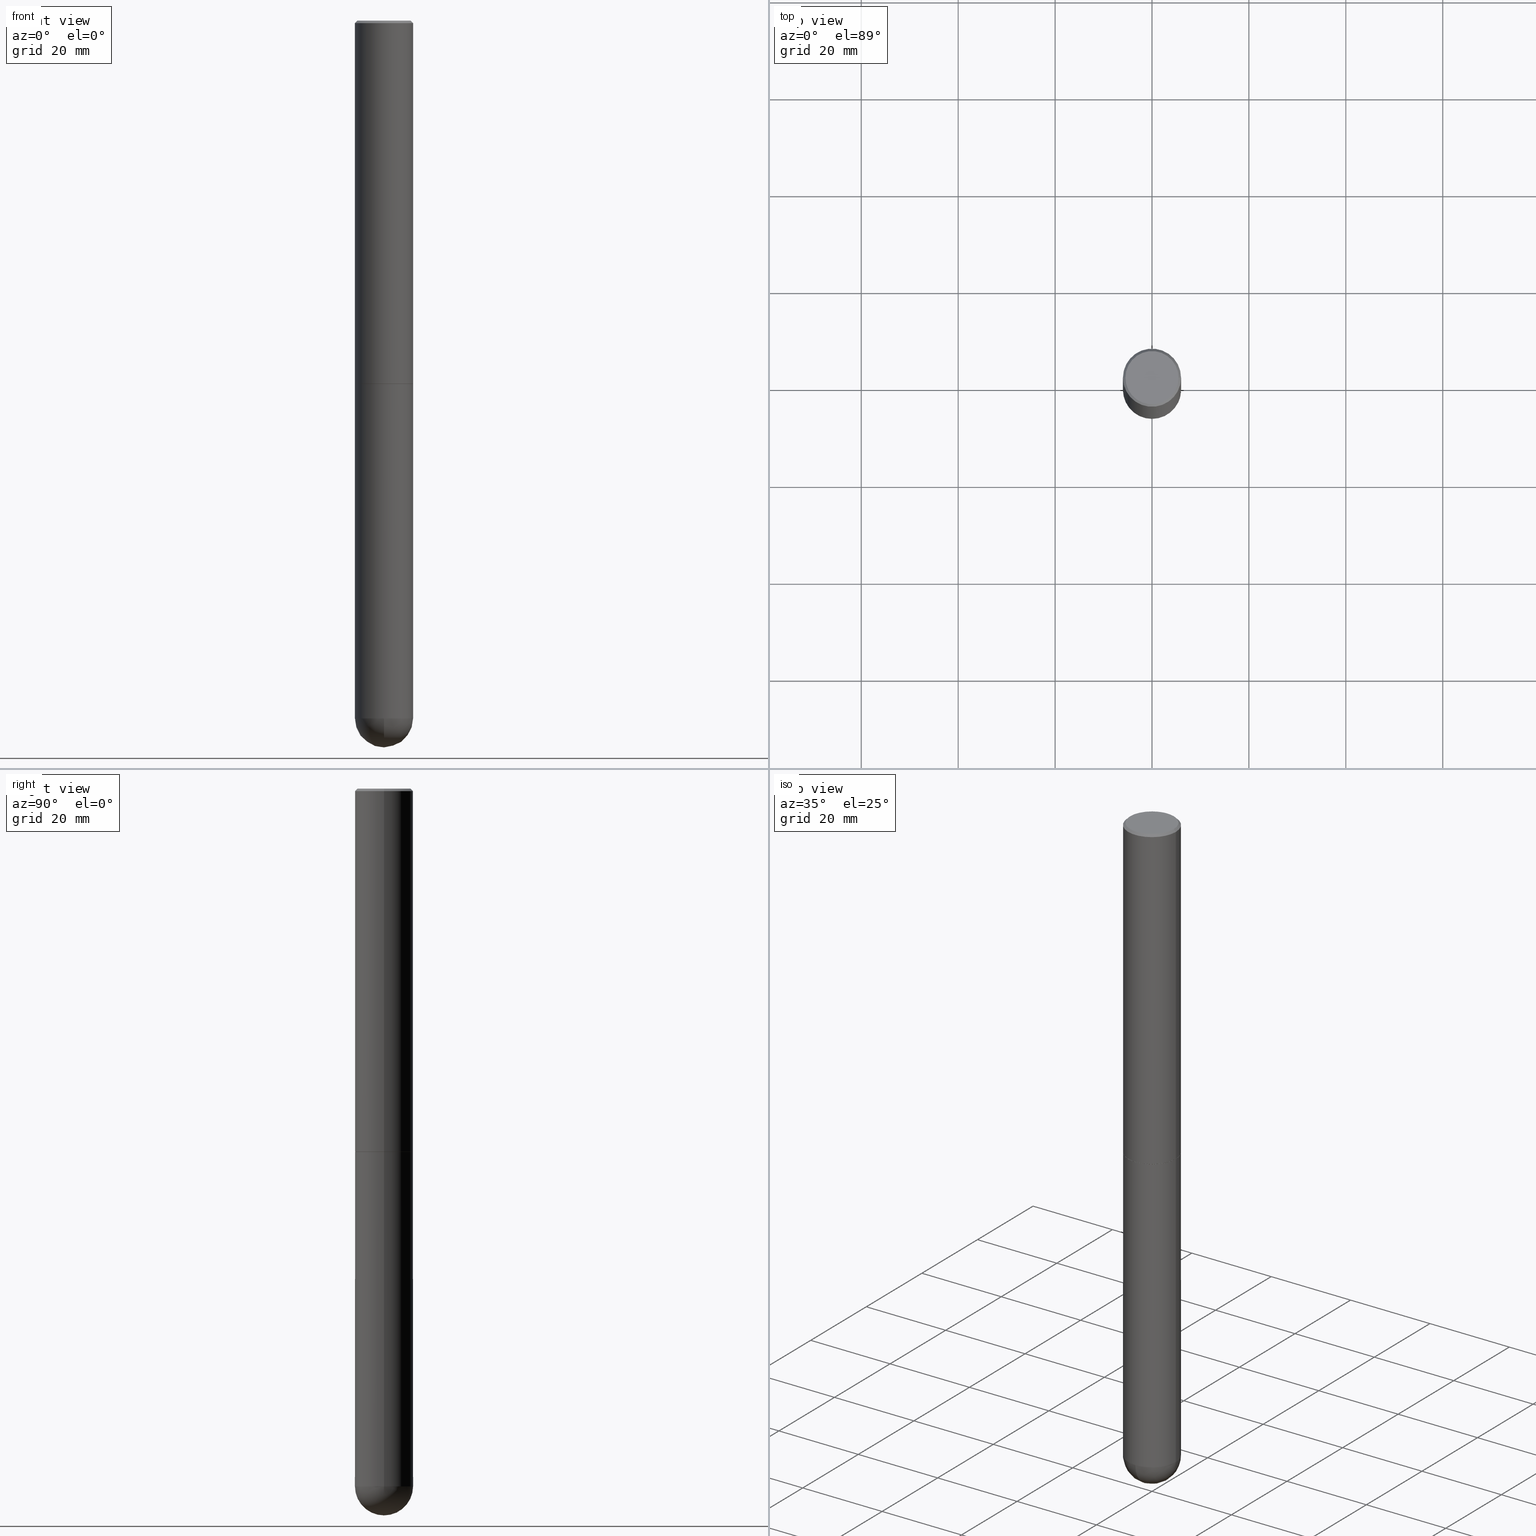
[diagram: canonical four-view strip — front | top / right | iso, engineering-drawing reading convention]
A machine part, canonical four-view strip (front | top / right | iso — engineering-drawing reading convention). The complete STEP part file that produces these views, byte-faithful:
ISO-10303-21;
HEADER;
FILE_DESCRIPTION (( 'STEP AP203' ),
    '1' );
FILE_NAME ('43546.STEP',
    '2024-04-10T11:44:12',
    ( '' ),
    ( '' ),
    'SwSTEP 2.0',
    'SolidWorks 2023',
    '' );
FILE_SCHEMA (( 'CONFIG_CONTROL_DESIGN' ));
ENDSEC;

DATA;
#1 = DIRECTION ( 'NONE',  ( -2.445468806185136597E-29, 3.491481338843145583E-15, 1.000000000000000000 ) ) ;
#2 = CARTESIAN_POINT ( 'NONE',  ( 0.000000000000000000, 0.000000000000000000, 0.000000000000000000 ) ) ;
#3 = CONICAL_SURFACE ( 'NONE', #379, 0.2351999999999999924, 0.7853981633977213939 ) ;
#4 = ADVANCED_FACE ( 'NONE', ( #305 ), #247, .T. ) ;
#5 = VECTOR ( 'NONE', #196, 39.37007874015748143 ) ;
#6 = DIRECTION ( 'NONE',  ( -2.445468806185136597E-29, 3.491481338843145583E-15, 1.000000000000000000 ) ) ;
#7 = EDGE_CURVE ( 'NONE', #111, #225, #255, .T. ) ;
#8 = CARTESIAN_POINT ( 'NONE',  ( 4.890937612370285420E-31, -6.982962677686308865E-17, -0.02000000000000005246 ) ) ;
#9 = DIMENSIONAL_EXPONENTS ( 1.000000000000000000, 0.000000000000000000, 0.000000000000000000, 0.000000000000000000, 0.000000000000000000, 0.000000000000000000, 0.000000000000000000 ) ;
#10 = AXIS2_PLACEMENT_3D ( 'NONE', #240, #365, #272 ) ;
#11 = AXIS2_PLACEMENT_3D ( 'NONE', #146, #109, #108 ) ;
#12 =( LENGTH_UNIT ( ) NAMED_UNIT ( * ) SI_UNIT ( $, .METRE. ) );
#13 = PRODUCT_RELATED_PRODUCT_CATEGORY ( 'detail', '', ( #120 ) ) ;
#14 = SHAPE_DEFINITION_REPRESENTATION ( #57, #319 ) ;
#15 = ORIENTED_EDGE ( 'NONE', *, *, #368, .F. ) ;
#16 = ORIENTED_EDGE ( 'NONE', *, *, #338, .T. ) ;
#17 = EDGE_LOOP ( 'NONE', ( #228, #188, #29, #15 ) ) ;
#18 = APPROVAL_DATE_TIME ( #123, #295 ) ;
#19 = DIRECTION ( 'NONE',  ( 1.000000000000000000, -6.982962677686266711E-15, 4.876176775795936353E-29 ) ) ;
#20 = ADVANCED_FACE ( 'NONE', ( #182 ), #150, .T. ) ;
#21 = CALENDAR_DATE ( 2024, 10, 4 ) ;
#22 = AXIS2_PLACEMENT_3D ( 'NONE', #8, #231, #325 ) ;
#23 = CARTESIAN_POINT ( 'NONE',  ( 1.353297652499150981E-28, -2.026843752244349558E-14, -5.669299999999999784 ) ) ;
#24 = DIRECTION ( 'NONE',  ( -2.445468806185136597E-29, 3.491481338843145583E-15, 1.000000000000000000 ) ) ;
#25 = EDGE_CURVE ( 'NONE', #382, #367, #93, .T. ) ;
#26 = FACE_OUTER_BOUND ( 'NONE', #115, .T. ) ;
#27 = AXIS2_PLACEMENT_3D ( 'NONE', #153, #249, #48 ) ;
#28 = CARTESIAN_POINT ( 'NONE',  ( 1.386409630290539494E-28, -1.979425515430344370E-14, -5.669299999999999784 ) ) ;
#29 = ORIENTED_EDGE ( 'NONE', *, *, #330, .T. ) ;
#30 = DIRECTION ( 'NONE',  ( 1.000000000000000000, -6.982962677686273021E-15, 0.000000000000000000 ) ) ;
#31 = CC_DESIGN_PERSON_AND_ORGANIZATION_ASSIGNMENT ( #106, #175, ( #120 ) ) ;
#32 = MANIFOLD_SOLID_BREP ( 'Body-Move/Copy2[2]', #168 ) ;
#33 = CARTESIAN_POINT ( 'NONE',  ( -0.2361999999999999933, -1.337347410988744691E-14, -5.669299999999999784 ) ) ;
#34 = CARTESIAN_POINT ( 'NONE',  ( 7.220735744022852519E-29, -1.030929694920215502E-14, -2.952700000000000102 ) ) ;
#35 = AXIS2_PLACEMENT_3D ( 'NONE', #245, #341, #395 ) ;
#36 = CIRCLE ( 'NONE', #278, 0.2361999999999999933 ) ;
#37 = LINE ( 'NONE', #227, #345 ) ;
#38 = LINE ( 'NONE', #138, #68 ) ;
#39 = ORIENTED_EDGE ( 'NONE', *, *, #210, .F. ) ;
#40 = CARTESIAN_POINT ( 'NONE',  ( 4.890937612370285420E-31, -6.982962677686308865E-17, -0.02000000000000005246 ) ) ;
#41 = CIRCLE ( 'NONE', #66, 0.2362000000000002709 ) ;
#42 = AXIS2_PLACEMENT_3D ( 'NONE', #40, #140, #233 ) ;
#43 = PLANE ( 'NONE',  #73 ) ;
#44 = ADVANCED_FACE ( 'NONE', ( #186 ), #3, .T. ) ;
#45 = MECHANICAL_CONTEXT ( 'NONE', #145, 'mechanical' ) ;
#46 = CIRCLE ( 'NONE', #358, 0.2361999999999999933 ) ;
#47 = APPROVAL_DATE_TIME ( #310, #236 ) ;
#48 = DIRECTION ( 'NONE',  ( 1.000000000000000000, -6.982962677686265133E-15, 0.000000000000000000 ) ) ;
#49 = ORIENTED_EDGE ( 'NONE', *, *, #330, .F. ) ;
#50 = COORDINATED_UNIVERSAL_TIME_OFFSET ( 5, 0, .BEHIND. ) ;
#51 = ORIENTED_EDGE ( 'NONE', *, *, #174, .T. ) ;
#52 = DIRECTION ( 'NONE',  ( -2.445468806185136597E-29, 3.491481338843145583E-15, 1.000000000000000000 ) ) ;
#53 = ADVANCED_FACE ( 'NONE', ( #26 ), #206, .T. ) ;
#54 = APPROVAL_STATUS ( 'not_yet_approved' ) ;
#55 = EDGE_LOOP ( 'NONE', ( #289, #409, #117, #339 ) ) ;
#56 = DIRECTION ( 'NONE',  ( 1.000000000000000000, -6.982962677686273021E-15, 0.000000000000000000 ) ) ;
#57 = PRODUCT_DEFINITION_SHAPE ( 'NONE', 'NONE',  #263 ) ;
#58 = CC_DESIGN_APPROVAL ( #223, ( #144 ) ) ;
#59 = DIRECTION ( 'NONE',  ( -1.000000000000000000, 6.982962677686265922E-15, -4.883557194083112901E-29 ) ) ;
#60 = EDGE_CURVE ( 'NONE', #219, #136, #143, .T. ) ;
#61 = PERSON_AND_ORGANIZATION_ROLE ( 'creator' ) ;
#62 = CARTESIAN_POINT ( 'NONE',  ( 7.220735744022852519E-29, -1.030929694920215502E-14, -2.952700000000000102 ) ) ;
#63 = DIRECTION ( 'NONE',  ( -1.000000000000000000, 6.982962677686266711E-15, 0.000000000000000000 ) ) ;
#64 = VERTEX_POINT ( 'NONE', #373 ) ;
#65 = ORIENTED_EDGE ( 'NONE', *, *, #7, .T. ) ;
#66 = AXIS2_PLACEMENT_3D ( 'NONE', #132, #377, #257 ) ;
#67 = CARTESIAN_POINT ( 'NONE',  ( 0.2361999999999999933, -1.690279253850498771E-15, -0.02000000000000005246 ) ) ;
#68 = VECTOR ( 'NONE', #201, 39.37007874015748143 ) ;
#69 = LINE ( 'NONE', #194, #408 ) ;
#70 = CARTESIAN_POINT ( 'NONE',  ( 7.218290275216666916E-29, -1.030580546786331359E-14, -2.951700000000000212 ) ) ;
#71 = CARTESIAN_POINT ( 'NONE',  ( 1.412069577088764835E-28, -2.107866233598031943E-14, -5.905499999999999972 ) ) ;
#72 = AXIS2_PLACEMENT_3D ( 'NONE', #371, #24, #124 ) ;
#73 = AXIS2_PLACEMENT_3D ( 'NONE', #326, #234, #388 ) ;
#74 = ADVANCED_FACE ( 'NONE', ( #275 ), #156, .T. ) ;
#75 = ORIENTED_EDGE ( 'NONE', *, *, #216, .T. ) ;
#76 = CARTESIAN_POINT ( 'NONE',  ( -0.2351999999999999924, -8.632801980346176439E-15, -2.952700000000000102 ) ) ;
#77 = ORIENTED_EDGE ( 'NONE', *, *, #274, .F. ) ;
#78 = EDGE_LOOP ( 'NONE', ( #226, #179 ) ) ;
#79 = DIRECTION ( 'NONE',  ( 1.000000000000000000, -6.982962677686268288E-15, 0.000000000000000000 ) ) ;
#80 = EDGE_CURVE ( 'NONE', #286, #111, #374, .T. ) ;
#81 = VECTOR ( 'NONE', #347, 39.37007874015748143 ) ;
#82 = APPLICATION_PROTOCOL_DEFINITION ( 'international standard', 'config_control_design', 1994, #145 ) ;
#83 = DIRECTION ( 'NONE',  ( -2.445468806185136597E-29, 3.491481338843145583E-15, 1.000000000000000000 ) ) ;
#84 = PERSON_AND_ORGANIZATION_ROLE ( 'design_supplier' ) ;
#85 = ADVANCED_FACE ( 'NONE', ( #399 ), #397, .T. ) ;
#86 = VERTEX_POINT ( 'NONE', #401 ) ;
#87 = VERTEX_POINT ( 'NONE', #215 ) ;
#88 = COORDINATED_UNIVERSAL_TIME_OFFSET ( 5, 0, .BEHIND. ) ;
#89 = VERTEX_POINT ( 'NONE', #403 ) ;
#90 = APPROVAL_PERSON_ORGANIZATION ( #271, #295, #246 ) ;
#91 = EDGE_LOOP ( 'NONE', ( #335, #237, #77, #385 ) ) ;
#92 = DIRECTION ( 'NONE',  ( 6.982962677686265922E-15, 1.000000000000000000, -4.626330217890364603E-15 ) ) ;
#93 = LINE ( 'NONE', #154, #191 ) ;
#94 = LINE ( 'NONE', #104, #81 ) ;
#95 = ORIENTED_EDGE ( 'NONE', *, *, #135, .T. ) ;
#96 = AXIS2_PLACEMENT_3D ( 'NONE', #137, #101, #63 ) ;
#97 = ADVANCED_FACE ( 'NONE', ( #311 ), #252, .F. ) ;
#98 = DIRECTION ( 'NONE',  ( 1.000000000000000000, -6.982962677686273021E-15, 0.000000000000000000 ) ) ;
#99 = CIRCLE ( 'NONE', #270, 0.2162000000000000310 ) ;
#100 = ORIENTED_EDGE ( 'NONE', *, *, #25, .T. ) ;
#101 = DIRECTION ( 'NONE',  ( 2.445468806185136597E-29, -3.491481338843145583E-15, -1.000000000000000000 ) ) ;
#102 = CARTESIAN_POINT ( 'NONE',  ( 0.2351999999999999924, -1.195168977099396553E-14, -2.952700000000000102 ) ) ;
#103 = CC_DESIGN_DATE_AND_TIME_ASSIGNMENT ( #398, #187, ( #263 ) ) ;
#104 = CARTESIAN_POINT ( 'NONE',  ( 0.2362000000000001598, -1.649375784469497314E-15, 1.151752954443000929E-29 ) ) ;
#105 = CIRCLE ( 'NONE', #214, 0.2351999999999999924 ) ;
#106 = PERSON_AND_ORGANIZATION ( #411, #307 ) ;
#107 = EDGE_CURVE ( 'NONE', #286, #303, #41, .T. ) ;
#108 = DIRECTION ( 'NONE',  ( 1.000000000000000000, -6.982962677686267499E-15, 4.874901889287146132E-29 ) ) ;
#109 = DIRECTION ( 'NONE',  ( -2.445468806185136597E-29, 3.491481338843145583E-15, 1.000000000000000000 ) ) ;
#110 = LOCAL_TIME ( 7, 44, 12.00000000000000000, #50 ) ;
#111 = VERTEX_POINT ( 'NONE', #378 ) ;
#112 = CALENDAR_DATE ( 2024, 10, 4 ) ;
#113 = DIRECTION ( 'NONE',  ( -2.445468806185136597E-29, 3.491481338843145583E-15, 1.000000000000000000 ) ) ;
#114 = CONICAL_SURFACE ( 'NONE', #127, 0.2351999999999999924, 0.7853981633977213939 ) ;
#115 = EDGE_LOOP ( 'NONE', ( #334, #116, #306, #354 ) ) ;
#116 = ORIENTED_EDGE ( 'NONE', *, *, #327, .T. ) ;
#117 = ORIENTED_EDGE ( 'NONE', *, *, #288, .F. ) ;
#118 = ORIENTED_EDGE ( 'NONE', *, *, #242, .T. ) ;
#119 = DATE_AND_TIME ( #112, #164 ) ;
#120 = PRODUCT ( '43546', '43546', '', ( #45 ) ) ;
#121 = CC_DESIGN_PERSON_AND_ORGANIZATION_ASSIGNMENT ( #304, #204, ( #340 ) ) ;
#122 = CARTESIAN_POINT ( 'NONE',  ( 1.353297652499150981E-28, -2.026843752244349558E-14, -5.669299999999999784 ) ) ;
#123 = DATE_AND_TIME ( #21, #300 ) ;
#124 = DIRECTION ( 'NONE',  ( 1.000000000000000000, -6.982962677686266711E-15, 4.876176775795936353E-29 ) ) ;
#125 = AXIS2_PLACEMENT_3D ( 'NONE', #23, #59, #180 ) ;
#126 = AXIS2_PLACEMENT_3D ( 'NONE', #283, #158, #342 ) ;
#127 = AXIS2_PLACEMENT_3D ( 'NONE', #34, #134, #258 ) ;
#128 = ORIENTED_EDGE ( 'NONE', *, *, #60, .F. ) ;
#129 = DIRECTION ( 'NONE',  ( 1.000000000000000000, -6.982962677686273021E-15, 0.000000000000000000 ) ) ;
#130 = ORIENTED_EDGE ( 'NONE', *, *, #216, .F. ) ;
#131 = DIRECTION ( 'NONE',  ( -2.445468806185136597E-29, 3.491481338843145583E-15, 1.000000000000000000 ) ) ;
#132 = CARTESIAN_POINT ( 'NONE',  ( 1.353297652499150981E-28, -2.026843752244349558E-14, -5.669299999999999784 ) ) ;
#133 = EDGE_LOOP ( 'NONE', ( #277, #405, #49, #185 ) ) ;
#134 = DIRECTION ( 'NONE',  ( -2.445468806185136597E-29, 3.491481338843145583E-15, 1.000000000000000000 ) ) ;
#135 = EDGE_CURVE ( 'NONE', #303, #87, #402, .T. ) ;
#136 = VERTEX_POINT ( 'NONE', #381 ) ;
#137 = CARTESIAN_POINT ( 'NONE',  ( 4.890937612370285420E-31, -6.982962677686308865E-17, -0.02000000000000005246 ) ) ;
#138 = CARTESIAN_POINT ( 'NONE',  ( -0.2361999999999999933, 1.678301941865356591E-15, -1.161852468318208757E-29 ) ) ;
#139 = AXIS2_PLACEMENT_3D ( 'NONE', #122, #217, #92 ) ;
#140 = DIRECTION ( 'NONE',  ( 2.445468806185136597E-29, -3.491481338843145583E-15, -1.000000000000000000 ) ) ;
#141 =( NAMED_UNIT ( * ) PLANE_ANGLE_UNIT ( ) SI_UNIT ( $, .RADIAN. ) );
#142 = CARTESIAN_POINT ( 'NONE',  ( -0.2361999999999999933, 1.579546157692633030E-15, -0.02000000000000005246 ) ) ;
#143 = CIRCLE ( 'NONE', #27, 0.2361999999999999933 ) ;
#144 = PRODUCT_DEFINITION_FORMATION_WITH_SPECIFIED_SOURCE ( 'ANY', '', #120, .NOT_KNOWN. ) ;
#145 = APPLICATION_CONTEXT ( 'configuration controlled 3d designs of mechanical parts and assemblies' ) ;
#146 = CARTESIAN_POINT ( 'NONE',  ( 1.878932545803395481E-45, -2.682617706684804906E-31, -7.683322482180740918E-17 ) ) ;
#147 = EDGE_LOOP ( 'NONE', ( #65, #16, #130, #192, #148 ) ) ;
#148 = ORIENTED_EDGE ( 'NONE', *, *, #288, .T. ) ;
#149 = ORIENTED_EDGE ( 'NONE', *, *, #189, .F. ) ;
#150 = SPHERICAL_SURFACE ( 'NONE', #125, 0.2362000000000002709 ) ;
#151 = AXIS2_PLACEMENT_3D ( 'NONE', #323, #131, #222 ) ;
#152 = CC_DESIGN_PERSON_AND_ORGANIZATION_ASSIGNMENT ( #273, #366, ( #144 ) ) ;
#153 = CARTESIAN_POINT ( 'NONE',  ( 7.220735744022852519E-29, -1.030929694920215502E-14, -2.952700000000000102 ) ) ;
#154 = CARTESIAN_POINT ( 'NONE',  ( -0.2351999999999999924, -8.638100434694398841E-15, -2.952700000000000102 ) ) ;
#155 = COORDINATED_UNIVERSAL_TIME_OFFSET ( 5, 0, .BEHIND. ) ;
#156 = CYLINDRICAL_SURFACE ( 'NONE', #220, 0.2361999999999999933 ) ;
#157 = AXIS2_PLACEMENT_3D ( 'NONE', #173, #297, #391 ) ;
#158 = DIRECTION ( 'NONE',  ( -2.445468806185136597E-29, 3.491481338843145583E-15, 1.000000000000000000 ) ) ;
#159 = ADVANCED_FACE ( 'NONE', ( #285 ), #229, .T. ) ;
#160 = FACE_OUTER_BOUND ( 'NONE', #147, .T. ) ;
#161 = CARTESIAN_POINT ( 'NONE',  ( 7.220735744022852519E-29, -1.030929694920215502E-14, -2.952700000000000102 ) ) ;
#162 = MANIFOLD_SOLID_BREP ( 'Body-Move/Copy2[1]', #320 ) ;
#163 = DIRECTION ( 'NONE',  ( -2.438088387897960049E-29, 3.491481338843145188E-15, 1.000000000000000000 ) ) ;
#164 = LOCAL_TIME ( 7, 44, 12.00000000000000000, #361 ) ;
#165 = PLANE ( 'NONE',  #291 ) ;
#166 = ORIENTED_EDGE ( 'NONE', *, *, #25, .F. ) ;
#167 = DIRECTION ( 'NONE',  ( -2.445468806185136597E-29, 3.491481338843145583E-15, 1.000000000000000000 ) ) ;
#168 = CLOSED_SHELL ( 'NONE', ( #44, #4, #357, #159, #53, #260, #170, #349 ) ) ;
#169 = AXIS2_PLACEMENT_3D ( 'NONE', #2, #83, #293 ) ;
#170 = ADVANCED_FACE ( 'NONE', ( #281 ), #165, .F. ) ;
#171 = LINE ( 'NONE', #142, #256 ) ;
#172 = EDGE_LOOP ( 'NONE', ( #51, #100, #280, #39 ) ) ;
#173 = CARTESIAN_POINT ( 'NONE',  ( 0.000000000000000000, 0.000000000000000000, 0.000000000000000000 ) ) ;
#174 = EDGE_CURVE ( 'NONE', #313, #382, #328, .T. ) ;
#175 = PERSON_AND_ORGANIZATION_ROLE ( 'design_owner' ) ;
#176 = PERSON_AND_ORGANIZATION ( #411, #307 ) ;
#177 = DIRECTION ( 'NONE',  ( -0.7071067811867406405, 7.493145998871051513E-15, 0.7071067811863543939 ) ) ;
#178 = DATE_AND_TIME ( #333, #235 ) ;
#179 = ORIENTED_EDGE ( 'NONE', *, *, #360, .T. ) ;
#180 = DIRECTION ( 'NONE',  ( 6.982962677686265922E-15, 1.000000000000000000, -4.626330217890364603E-15 ) ) ;
#181 = EDGE_CURVE ( 'NONE', #64, #261, #94, .T. ) ;
#182 = FACE_OUTER_BOUND ( 'NONE', #55, .T. ) ;
#183 = VECTOR ( 'NONE', #346, 39.37007874015748143 ) ;
#184 = CONICAL_SURFACE ( 'NONE', #42, 0.2361999999999999933, 0.7853981633974479459 ) ;
#185 = ORIENTED_EDGE ( 'NONE', *, *, #181, .F. ) ;
#186 = FACE_OUTER_BOUND ( 'NONE', #172, .T. ) ;
#187 = DATE_TIME_ROLE ( 'creation_date' ) ;
#188 = ORIENTED_EDGE ( 'NONE', *, *, #189, .T. ) ;
#189 = EDGE_CURVE ( 'NONE', #89, #261, #198, .T. ) ;
#190 = FACE_OUTER_BOUND ( 'NONE', #324, .T. ) ;
#191 = VECTOR ( 'NONE', #177, 39.37007874015748143 ) ;
#192 = ORIENTED_EDGE ( 'NONE', *, *, #282, .F. ) ;
#193 = DIRECTION ( 'NONE',  ( -2.445468806185136597E-29, 3.491481338843145583E-15, 1.000000000000000000 ) ) ;
#194 = CARTESIAN_POINT ( 'NONE',  ( -0.2362000000000001598, 1.678301941865357775E-15, -1.161852468318209598E-29 ) ) ;
#195 = CC_DESIGN_PERSON_AND_ORGANIZATION_ASSIGNMENT ( #400, #84, ( #144 ) ) ;
#196 = DIRECTION ( 'NONE',  ( 0.7071067811867406405, -2.468850131084279700E-15, 0.7071067811863543939 ) ) ;
#197 = EDGE_LOOP ( 'NONE', ( #394, #362, #95, #209, #128 ) ) ;
#198 = LINE ( 'NONE', #67, #183 ) ;
#199 = CC_DESIGN_APPROVAL ( #295, ( #263 ) ) ;
#200 = FACE_OUTER_BOUND ( 'NONE', #78, .T. ) ;
#201 = DIRECTION ( 'NONE',  ( -2.445468806185136877E-29, 3.491481338843145188E-15, 1.000000000000000000 ) ) ;
#202 = EDGE_CURVE ( 'NONE', #367, #208, #69, .T. ) ;
#203 = CARTESIAN_POINT ( 'NONE',  ( 7.220735744022852519E-29, -1.030929694920215502E-14, -2.952700000000000102 ) ) ;
#204 = PERSON_AND_ORGANIZATION_ROLE ( 'classification_officer' ) ;
#205 = APPROVAL_ROLE ( '' ) ;
#206 = CYLINDRICAL_SURFACE ( 'NONE', #72, 0.2362000000000001598 ) ;
#207 = APPROVAL_ROLE ( '' ) ;
#208 = VERTEX_POINT ( 'NONE', #287 ) ;
#209 = ORIENTED_EDGE ( 'NONE', *, *, #282, .T. ) ;
#210 = EDGE_CURVE ( 'NONE', #313, #64, #316, .T. ) ;
#211 = COORDINATED_UNIVERSAL_TIME_OFFSET ( 5, 0, .BEHIND. ) ;
#212 = ORIENTED_EDGE ( 'NONE', *, *, #60, .T. ) ;
#213 = ORIENTED_EDGE ( 'NONE', *, *, #210, .T. ) ;
#214 = AXIS2_PLACEMENT_3D ( 'NONE', #203, #262, #79 ) ;
#215 = CARTESIAN_POINT ( 'NONE',  ( 0.2361999999999999933, -1.670115183622230141E-14, -5.669299999999999784 ) ) ;
#216 = EDGE_CURVE ( 'NONE', #136, #219, #230, .T. ) ;
#217 = DIRECTION ( 'NONE',  ( -1.000000000000000000, 6.982962677686265922E-15, -4.883557194083112901E-29 ) ) ;
#218 = CARTESIAN_POINT ( 'NONE',  ( 0.2351999999999999924, -1.195168977099396553E-14, -2.952700000000000102 ) ) ;
#219 = VERTEX_POINT ( 'NONE', #254 ) ;
#220 = AXIS2_PLACEMENT_3D ( 'NONE', #302, #52, #19 ) ;
#221 = AXIS2_PLACEMENT_3D ( 'NONE', #389, #6, #264 ) ;
#222 = DIRECTION ( 'NONE',  ( 1.000000000000000000, -6.982962677686268288E-15, 0.000000000000000000 ) ) ;
#223 = APPROVAL ( #248, 'UNSPECIFIED' ) ;
#224 = CARTESIAN_POINT ( 'NONE',  ( 1.386409630290539494E-28, -1.979425515430344370E-14, -5.669299999999999784 ) ) ;
#225 = VERTEX_POINT ( 'NONE', #33 ) ;
#226 = ORIENTED_EDGE ( 'NONE', *, *, #343, .T. ) ;
#227 = CARTESIAN_POINT ( 'NONE',  ( 0.2361999999999999933, -1.649375784469496131E-15, 1.151752954443000088E-29 ) ) ;
#228 = ORIENTED_EDGE ( 'NONE', *, *, #360, .F. ) ;
#229 = CONICAL_SURFACE ( 'NONE', #96, 0.2361999999999999933, 0.7853981633974479459 ) ;
#230 = CIRCLE ( 'NONE', #364, 0.2361999999999999933 ) ;
#231 = DIRECTION ( 'NONE',  ( -2.445468806185136597E-29, 3.491481338843145583E-15, 1.000000000000000000 ) ) ;
#232 = FACE_OUTER_BOUND ( 'NONE', #17, .T. ) ;
#233 = DIRECTION ( 'NONE',  ( -1.000000000000000000, 6.982962677686266711E-15, 0.000000000000000000 ) ) ;
#234 = DIRECTION ( 'NONE',  ( 2.438088387897960049E-29, -3.491481338843145188E-15, -1.000000000000000000 ) ) ;
#235 = LOCAL_TIME ( 7, 44, 12.00000000000000000, #155 ) ;
#236 = APPROVAL ( #336, 'UNSPECIFIED' ) ;
#237 = ORIENTED_EDGE ( 'NONE', *, *, #107, .T. ) ;
#238 = APPROVAL_DATE_TIME ( #178, #223 ) ;
#239 = EDGE_LOOP ( 'NONE', ( #317, #244 ) ) ;
#240 = CARTESIAN_POINT ( 'NONE',  ( 1.353297652499150981E-28, -2.026843752244349558E-14, -5.669299999999999784 ) ) ;
#241 = CIRCLE ( 'NONE', #22, 0.2361999999999999933 ) ;
#242 = EDGE_CURVE ( 'NONE', #208, #261, #390, .T. ) ;
#243 = CALENDAR_DATE ( 2024, 10, 4 ) ;
#244 = ORIENTED_EDGE ( 'NONE', *, *, #392, .F. ) ;
#245 = CARTESIAN_POINT ( 'NONE',  ( 0.000000000000000000, 0.000000000000000000, 0.000000000000000000 ) ) ;
#246 = APPROVAL_ROLE ( '' ) ;
#247 = CYLINDRICAL_SURFACE ( 'NONE', #35, 0.2362000000000001598 ) ;
#248 = APPROVAL_STATUS ( 'not_yet_approved' ) ;
#249 = DIRECTION ( 'NONE',  ( -2.445468806185136597E-29, 3.491481338843145583E-15, 1.000000000000000000 ) ) ;
#250 = EDGE_CURVE ( 'NONE', #64, #367, #292, .T. ) ;
#251 = CC_DESIGN_APPROVAL ( #236, ( #340 ) ) ;
#252 = PLANE ( 'NONE',  #363 ) ;
#253 = CARTESIAN_POINT ( 'NONE',  ( -1.678301941865220316E-15, -0.2362000000000201716, -5.669299999999998896 ) ) ;
#254 = CARTESIAN_POINT ( 'NONE',  ( -0.2361999999999999933, -1.337347410988744218E-14, -2.952700000000000102 ) ) ;
#255 = CIRCLE ( 'NONE', #387, 0.2361999999999999933 ) ;
#256 = VECTOR ( 'NONE', #355, 39.37007874015748143 ) ;
#257 = DIRECTION ( 'NONE',  ( -7.105427357601001070E-15, -1.000000000000000000, 0.000000000000000000 ) ) ;
#258 = DIRECTION ( 'NONE',  ( 1.000000000000000000, -6.982962677686268288E-15, 0.000000000000000000 ) ) ;
#259 = CARTESIAN_POINT ( 'NONE',  ( 7.220735744022852519E-29, -1.030929694920215502E-14, -2.952700000000000102 ) ) ;
#260 = ADVANCED_FACE ( 'NONE', ( #190 ), #114, .T. ) ;
#261 = VERTEX_POINT ( 'NONE', #312 ) ;
#262 = DIRECTION ( 'NONE',  ( -2.445468806185136597E-29, 3.491481338843145583E-15, 1.000000000000000000 ) ) ;
#263 = PRODUCT_DEFINITION ( 'UNKNOWN', '', #144, #393 ) ;
#264 = DIRECTION ( 'NONE',  ( 1.000000000000000000, -6.982962677686263555E-15, 0.000000000000000000 ) ) ;
#265 = APPROVAL_PERSON_ORGANIZATION ( #331, #236, #205 ) ;
#266 = CARTESIAN_POINT ( 'NONE',  ( 1.878932545803395481E-45, -2.682617706684804906E-31, -7.683322482180740918E-17 ) ) ;
#267 = EDGE_LOOP ( 'NONE', ( #149, #352, #290, #118 ) ) ;
#268 = CALENDAR_DATE ( 2024, 10, 4 ) ;
#269 = DIRECTION ( 'NONE',  ( 2.438088387897960049E-29, -3.491481338843145188E-15, -1.000000000000000000 ) ) ;
#270 = AXIS2_PLACEMENT_3D ( 'NONE', #266, #167, #353 ) ;
#271 = PERSON_AND_ORGANIZATION ( #411, #307 ) ;
#272 = DIRECTION ( 'NONE',  ( 6.982962677686265922E-15, 1.000000000000000000, 0.000000000000000000 ) ) ;
#273 = PERSON_AND_ORGANIZATION ( #411, #307 ) ;
#274 = EDGE_CURVE ( 'NONE', #225, #303, #46, .T. ) ;
#275 = FACE_OUTER_BOUND ( 'NONE', #197, .T. ) ;
#276 = APPLICATION_PROTOCOL_DEFINITION ( 'international standard', 'config_control_design', 1994, #359 ) ;
#277 = ORIENTED_EDGE ( 'NONE', *, *, #250, .T. ) ;
#278 = AXIS2_PLACEMENT_3D ( 'NONE', #28, #404, #129 ) ;
#279 = DIRECTION ( 'NONE',  ( 1.000000000000000000, -6.982962677686263555E-15, 0.000000000000000000 ) ) ;
#280 = ORIENTED_EDGE ( 'NONE', *, *, #250, .F. ) ;
#281 = FACE_OUTER_BOUND ( 'NONE', #239, .T. ) ;
#282 = EDGE_CURVE ( 'NONE', #87, #136, #37, .T. ) ;
#283 = CARTESIAN_POINT ( 'NONE',  ( 4.890937612370285420E-31, -6.982962677686308865E-17, -0.02000000000000005246 ) ) ;
#284 = CIRCLE ( 'NONE', #221, 0.2362000000000003264 ) ;
#285 = FACE_OUTER_BOUND ( 'NONE', #267, .T. ) ;
#286 = VERTEX_POINT ( 'NONE', #71 ) ;
#287 = CARTESIAN_POINT ( 'NONE',  ( -0.2361999999999999933, 1.579546157692633030E-15, -0.02000000000000005246 ) ) ;
#288 = EDGE_CURVE ( 'NONE', #87, #111, #36, .T. ) ;
#289 = ORIENTED_EDGE ( 'NONE', *, *, #107, .F. ) ;
#290 = ORIENTED_EDGE ( 'NONE', *, *, #368, .T. ) ;
#291 = AXIS2_PLACEMENT_3D ( 'NONE', #259, #163, #314 ) ;
#292 = CIRCLE ( 'NONE', #375, 0.2362000000000003264 ) ;
#293 = DIRECTION ( 'NONE',  ( 1.000000000000000000, -6.982962677686266711E-15, 4.876176775795936353E-29 ) ) ;
#294 = UNCERTAINTY_MEASURE_WITH_UNIT (LENGTH_MEASURE( 1.000000000000000082E-05 ), #329, 'distance_accuracy_value', 'NONE');
#295 = APPROVAL ( #54, 'UNSPECIFIED' ) ;
#296 = LENGTH_MEASURE_WITH_UNIT ( LENGTH_MEASURE( 0.02539999999999999897 ), #12 );
#297 = DIRECTION ( 'NONE',  ( 0.000000000000000000, 0.000000000000000000, 1.000000000000000000 ) ) ;
#298 = AXIS2_PLACEMENT_3D ( 'NONE', #224, #406, #98 ) ;
#299 =( NAMED_UNIT ( * ) SI_UNIT ( $, .STERADIAN. ) SOLID_ANGLE_UNIT ( ) );
#300 = LOCAL_TIME ( 7, 44, 12.00000000000000000, #211 ) ;
#301 = SECURITY_CLASSIFICATION_LEVEL ( 'unclassified' ) ;
#302 = CARTESIAN_POINT ( 'NONE',  ( 0.000000000000000000, 0.000000000000000000, 0.000000000000000000 ) ) ;
#303 = VERTEX_POINT ( 'NONE', #253 ) ;
#304 = PERSON_AND_ORGANIZATION ( #411, #307 ) ;
#305 = FACE_OUTER_BOUND ( 'NONE', #133, .T. ) ;
#306 = ORIENTED_EDGE ( 'NONE', *, *, #181, .T. ) ;
#307 = ORGANIZATION ( 'UNSPECIFIED', 'UNSPECIFIED', '' ) ;
#308 = CC_DESIGN_DATE_AND_TIME_ASSIGNMENT ( #119, #372, ( #340 ) ) ;
#309 = DIRECTION ( 'NONE',  ( 1.000000000000000000, -6.982962677686268288E-15, 0.000000000000000000 ) ) ;
#310 = DATE_AND_TIME ( #268, #351 ) ;
#311 = FACE_OUTER_BOUND ( 'NONE', #384, .T. ) ;
#312 = CARTESIAN_POINT ( 'NONE',  ( 0.2361999999999999933, -1.690279253850498771E-15, -0.02000000000000005246 ) ) ;
#313 = VERTEX_POINT ( 'NONE', #218 ) ;
#314 = DIRECTION ( 'NONE',  ( 1.000000000000000000, -6.982962677686265922E-15, 4.876176775795935793E-29 ) ) ;
#315 = ADVANCED_FACE ( 'NONE', ( #160 ), #344, .T. ) ;
#316 = LINE ( 'NONE', #102, #5 ) ;
#317 = ORIENTED_EDGE ( 'NONE', *, *, #174, .F. ) ;
#318 = DIRECTION ( 'NONE',  ( -2.445468806185136597E-29, 3.491481338843145583E-15, 1.000000000000000000 ) ) ;
#319 = ADVANCED_BREP_SHAPE_REPRESENTATION ( '43546', ( #162, #32, #157 ), #380 ) ;
#320 = CLOSED_SHELL ( 'NONE', ( #315, #85, #20, #97, #74 ) ) ;
#321 = CC_DESIGN_SECURITY_CLASSIFICATION ( #340, ( #144 ) ) ;
#322 = CC_DESIGN_PERSON_AND_ORGANIZATION_ASSIGNMENT ( #176, #61, ( #263 ) ) ;
#323 = CARTESIAN_POINT ( 'NONE',  ( 7.220735744022852519E-29, -1.030929694920215502E-14, -2.952700000000000102 ) ) ;
#324 = EDGE_LOOP ( 'NONE', ( #166, #332, #213, #348 ) ) ;
#325 = DIRECTION ( 'NONE',  ( 1.000000000000000000, -6.982962677686266711E-15, 0.000000000000000000 ) ) ;
#326 = CARTESIAN_POINT ( 'NONE',  ( 1.509716530915770915E-15, 0.2162000000000000310, -7.932748778687918614E-16 ) ) ;
#327 = EDGE_CURVE ( 'NONE', #367, #64, #284, .T. ) ;
#328 = CIRCLE ( 'NONE', #151, 0.2351999999999999924 ) ;
#329 =( CONVERSION_BASED_UNIT ( 'INCH', #296 ) LENGTH_UNIT ( ) NAMED_UNIT ( #9 ) );
#330 = EDGE_CURVE ( 'NONE', #261, #208, #241, .T. ) ;
#331 = PERSON_AND_ORGANIZATION ( #411, #307 ) ;
#332 = ORIENTED_EDGE ( 'NONE', *, *, #392, .T. ) ;
#333 = CALENDAR_DATE ( 2024, 10, 4 ) ;
#334 = ORIENTED_EDGE ( 'NONE', *, *, #202, .F. ) ;
#335 = ORIENTED_EDGE ( 'NONE', *, *, #80, .F. ) ;
#336 = APPROVAL_STATUS ( 'not_yet_approved' ) ;
#337 = DIRECTION ( 'NONE',  ( -2.445468806185136597E-29, 3.491481338843145583E-15, 1.000000000000000000 ) ) ;
#338 = EDGE_CURVE ( 'NONE', #225, #219, #38, .T. ) ;
#339 = ORIENTED_EDGE ( 'NONE', *, *, #135, .F. ) ;
#340 = SECURITY_CLASSIFICATION ( '', '', #301 ) ;
#341 = DIRECTION ( 'NONE',  ( -2.445468806185136597E-29, 3.491481338843145583E-15, 1.000000000000000000 ) ) ;
#342 = DIRECTION ( 'NONE',  ( 1.000000000000000000, -6.982962677686266711E-15, 0.000000000000000000 ) ) ;
#343 = EDGE_CURVE ( 'NONE', #86, #89, #396, .T. ) ;
#344 = CYLINDRICAL_SURFACE ( 'NONE', #169, 0.2361999999999999933 ) ;
#345 = VECTOR ( 'NONE', #350, 39.37007874015748143 ) ;
#346 = DIRECTION ( 'NONE',  ( 0.7071067811865472397, -7.319954787623254468E-15, -0.7071067811865477948 ) ) ;
#347 = DIRECTION ( 'NONE',  ( -2.445468806185136877E-29, 3.491481338843145188E-15, 1.000000000000000000 ) ) ;
#348 = ORIENTED_EDGE ( 'NONE', *, *, #327, .F. ) ;
#349 = ADVANCED_FACE ( 'NONE', ( #200 ), #43, .F. ) ;
#350 = DIRECTION ( 'NONE',  ( -2.445468806185136877E-29, 3.491481338843145188E-15, 1.000000000000000000 ) ) ;
#351 = LOCAL_TIME ( 7, 44, 12.00000000000000000, #88 ) ;
#352 = ORIENTED_EDGE ( 'NONE', *, *, #343, .F. ) ;
#353 = DIRECTION ( 'NONE',  ( 1.000000000000000000, -6.982962677686267499E-15, 4.874901889287146132E-29 ) ) ;
#354 = ORIENTED_EDGE ( 'NONE', *, *, #242, .F. ) ;
#355 = DIRECTION ( 'NONE',  ( -0.7071067811865472397, 2.468850131082253905E-15, -0.7071067811865477948 ) ) ;
#356 = CARTESIAN_POINT ( 'NONE',  ( -0.2362000000000003264, -3.509515605454725737E-15, -2.951700000000000212 ) ) ;
#357 = ADVANCED_FACE ( 'NONE', ( #232 ), #184, .T. ) ;
#358 = AXIS2_PLACEMENT_3D ( 'NONE', #383, #193, #30 ) ;
#359 = APPLICATION_CONTEXT ( 'configuration controlled 3d designs of mechanical parts and assemblies' ) ;
#360 = EDGE_CURVE ( 'NONE', #89, #86, #99, .T. ) ;
#361 = COORDINATED_UNIVERSAL_TIME_OFFSET ( 5, 0, .BEHIND. ) ;
#362 = ORIENTED_EDGE ( 'NONE', *, *, #274, .T. ) ;
#363 = AXIS2_PLACEMENT_3D ( 'NONE', #376, #269, #407 ) ;
#364 = AXIS2_PLACEMENT_3D ( 'NONE', #161, #1, #386 ) ;
#365 = DIRECTION ( 'NONE',  ( 1.000000000000000000, -6.982962677686265922E-15, 4.883557194083112340E-29 ) ) ;
#366 = PERSON_AND_ORGANIZATION_ROLE ( 'creator' ) ;
#367 = VERTEX_POINT ( 'NONE', #356 ) ;
#368 = EDGE_CURVE ( 'NONE', #86, #208, #171, .T. ) ;
#369 = CARTESIAN_POINT ( 'NONE',  ( 1.386409630290539494E-28, -1.979425515430344370E-14, -5.669299999999999784 ) ) ;
#370 = PERSON_AND_ORGANIZATION ( #411, #307 ) ;
#371 = CARTESIAN_POINT ( 'NONE',  ( 0.000000000000000000, 0.000000000000000000, 0.000000000000000000 ) ) ;
#372 = DATE_TIME_ROLE ( 'classification_date' ) ;
#373 = CARTESIAN_POINT ( 'NONE',  ( 0.2362000000000003264, -1.195518125233281169E-14, -2.951700000000000212 ) ) ;
#374 = CIRCLE ( 'NONE', #10, 0.2362000000000002709 ) ;
#375 = AXIS2_PLACEMENT_3D ( 'NONE', #70, #318, #279 ) ;
#376 = CARTESIAN_POINT ( 'NONE',  ( 1.649375784469568312E-15, 0.2361999999999896960, -2.952700000000000990 ) ) ;
#377 = DIRECTION ( 'NONE',  ( -1.000000000000000000, 7.105427357601001070E-15, -4.926315508542082329E-29 ) ) ;
#378 = CARTESIAN_POINT ( 'NONE',  ( 1.649375784469633984E-15, 0.2361999999999800925, -5.669300000000000672 ) ) ;
#379 = AXIS2_PLACEMENT_3D ( 'NONE', #62, #113, #309 ) ;
#380 =( GEOMETRIC_REPRESENTATION_CONTEXT ( 3 ) GLOBAL_UNCERTAINTY_ASSIGNED_CONTEXT ( ( #294 ) ) GLOBAL_UNIT_ASSIGNED_CONTEXT ( ( #329, #141, #299 ) ) REPRESENTATION_CONTEXT ( 'NONE', 'WORKASPACE' ) );
#381 = CARTESIAN_POINT ( 'NONE',  ( 0.2361999999999999933, -1.195867273367164996E-14, -2.952700000000000102 ) ) ;
#382 = VERTEX_POINT ( 'NONE', #76 ) ;
#383 = CARTESIAN_POINT ( 'NONE',  ( 1.386409630290539494E-28, -1.979425515430344370E-14, -5.669299999999999784 ) ) ;
#384 = EDGE_LOOP ( 'NONE', ( #75, #212 ) ) ;
#385 = ORIENTED_EDGE ( 'NONE', *, *, #7, .F. ) ;
#386 = DIRECTION ( 'NONE',  ( 1.000000000000000000, -6.982962677686265133E-15, 0.000000000000000000 ) ) ;
#387 = AXIS2_PLACEMENT_3D ( 'NONE', #369, #337, #56 ) ;
#388 = DIRECTION ( 'NONE',  ( -1.000000000000000000, 6.982962677686265922E-15, -4.876176775795935793E-29 ) ) ;
#389 = CARTESIAN_POINT ( 'NONE',  ( 7.218290275216666916E-29, -1.030580546786331359E-14, -2.951700000000000212 ) ) ;
#390 = CIRCLE ( 'NONE', #126, 0.2361999999999999933 ) ;
#391 = DIRECTION ( 'NONE',  ( 1.000000000000000000, 0.000000000000000000, 0.000000000000000000 ) ) ;
#392 = EDGE_CURVE ( 'NONE', #382, #313, #105, .T. ) ;
#393 = DESIGN_CONTEXT ( 'detailed design', #359, 'design' ) ;
#394 = ORIENTED_EDGE ( 'NONE', *, *, #338, .F. ) ;
#395 = DIRECTION ( 'NONE',  ( 1.000000000000000000, -6.982962677686266711E-15, 4.876176775795936353E-29 ) ) ;
#396 = CIRCLE ( 'NONE', #11, 0.2162000000000000310 ) ;
#397 = SPHERICAL_SURFACE ( 'NONE', #139, 0.2362000000000002709 ) ;
#398 = DATE_AND_TIME ( #243, #110 ) ;
#399 = FACE_OUTER_BOUND ( 'NONE', #91, .T. ) ;
#400 = PERSON_AND_ORGANIZATION ( #411, #307 ) ;
#401 = CARTESIAN_POINT ( 'NONE',  ( -0.2162000000000000310, 1.544631344304202170E-15, -7.683322482181808346E-17 ) ) ;
#402 = CIRCLE ( 'NONE', #298, 0.2361999999999999933 ) ;
#403 = CARTESIAN_POINT ( 'NONE',  ( 0.2162000000000000310, -1.586759460484352185E-15, -7.683322482179657467E-17 ) ) ;
#404 = DIRECTION ( 'NONE',  ( -2.445468806185136597E-29, 3.491481338843145583E-15, 1.000000000000000000 ) ) ;
#405 = ORIENTED_EDGE ( 'NONE', *, *, #202, .T. ) ;
#406 = DIRECTION ( 'NONE',  ( -2.445468806185136597E-29, 3.491481338843145583E-15, 1.000000000000000000 ) ) ;
#407 = DIRECTION ( 'NONE',  ( -1.000000000000000000, 6.982962677686265922E-15, -4.876176775795935793E-29 ) ) ;
#408 = VECTOR ( 'NONE', #412, 39.37007874015748143 ) ;
#409 = ORIENTED_EDGE ( 'NONE', *, *, #80, .T. ) ;
#410 = APPROVAL_PERSON_ORGANIZATION ( #370, #223, #207 ) ;
#411 = PERSON ( 'UNSPECIFIED', 'UNSPECIFIED', 'UNSPECIFIED', ('UNSPECIFIED'), ('UNSPECIFIED'), ('UNSPECIFIED') ) ;
#412 = DIRECTION ( 'NONE',  ( -2.445468806185136877E-29, 3.491481338843145188E-15, 1.000000000000000000 ) ) ;
ENDSEC;
END-ISO-10303-21;
